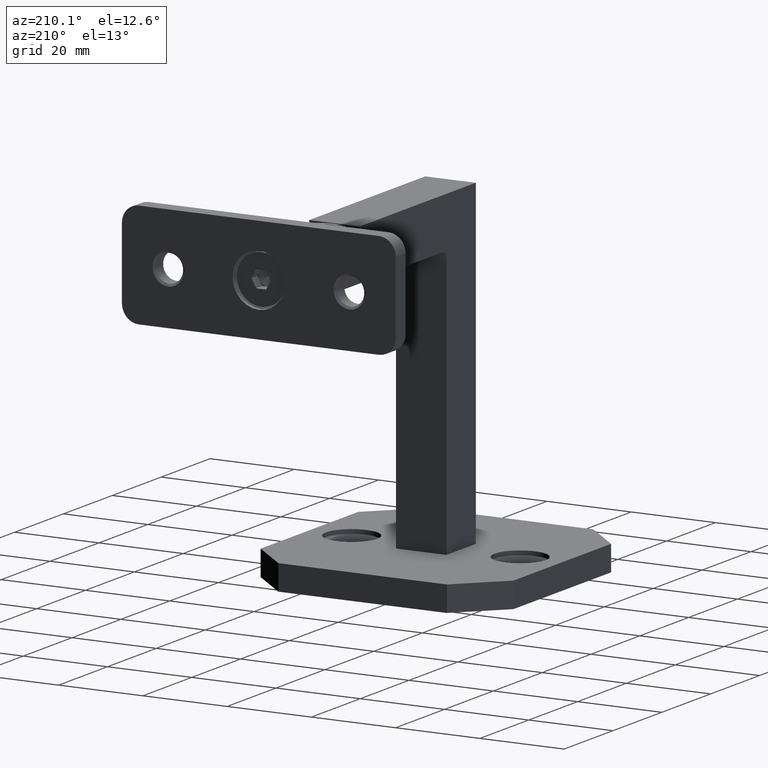
[diagram: clean part render]
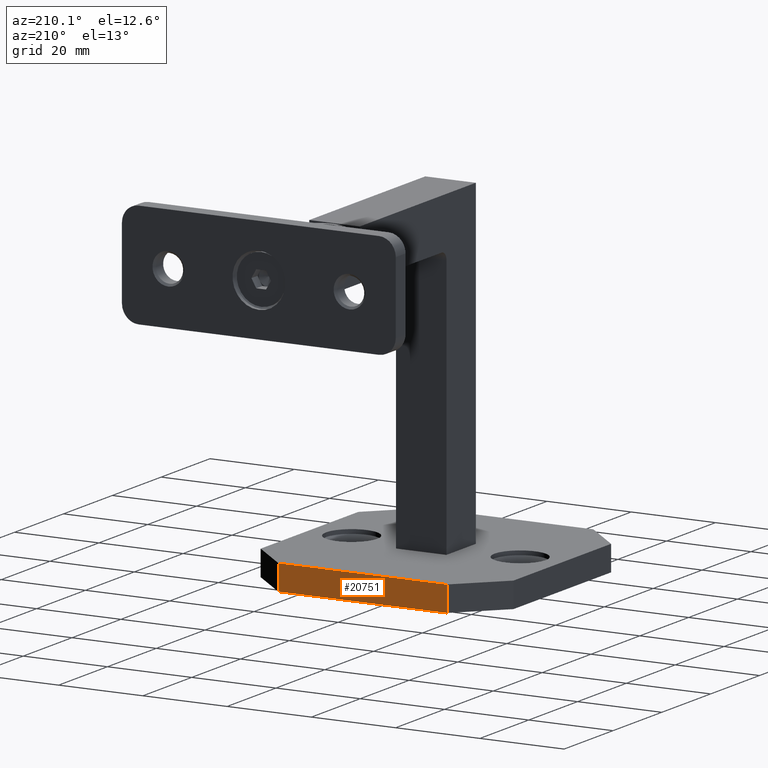
[diagram: same view with one face highlighted and labeled with its STEP entity id]
A machine part, auxiliary view. The second image highlights one B-rep face of the part: STEP entity #20751.
In plain terms, the highlighted planar face has unit normal (0, -1, 0).
Its self-contained STEP definition (entity closure, byte-faithful):
#495 = CARTESIAN_POINT ( 'NONE',  ( -19.99999999999998579, 30.00000000000000711, -3.000000000000000000 ) ) ;
#1288 = VECTOR ( 'NONE', #2352, 1000.000000000000000 ) ;
#1928 = VERTEX_POINT ( 'NONE', #10615 ) ;
#2352 = DIRECTION ( 'NONE',  ( -1.000000000000000000, -0.000000000000000000, -0.000000000000000000 ) ) ;
#3145 = DIRECTION ( 'NONE',  ( 0.000000000000000000, 0.000000000000000000, -1.000000000000000000 ) ) ;
#3239 = CARTESIAN_POINT ( 'NONE',  ( -30.00000000000001066, 30.00000000000000711, -3.000000000000000000 ) ) ;
#4252 = CARTESIAN_POINT ( 'NONE',  ( -30.00000000000001066, 30.00000000000000711, 3.000000000000000000 ) ) ;
#4499 = CARTESIAN_POINT ( 'NONE',  ( 19.99999999999998579, 30.00000000000000711, 3.000000000000000000 ) ) ;
#5243 = VERTEX_POINT ( 'NONE', #15216 ) ;
#6421 = FACE_OUTER_BOUND ( 'NONE', #18091, .T. ) ;
#6687 = LINE ( 'NONE', #4252, #1288 ) ;
#7987 = VERTEX_POINT ( 'NONE', #495 ) ;
#8129 = VECTOR ( 'NONE', #13192, 1000.000000000000000 ) ;
#8400 = LINE ( 'NONE', #4499, #16937 ) ;
#8693 = DIRECTION ( 'NONE',  ( 0.000000000000000000, -0.000000000000000000, -1.000000000000000000 ) ) ;
#9533 = EDGE_CURVE ( 'NONE', #1928, #7987, #13548, .T. ) ;
#10417 = EDGE_CURVE ( 'NONE', #7987, #5243, #23223, .T. ) ;
#10615 = CARTESIAN_POINT ( 'NONE',  ( 19.99999999999997513, 30.00000000000001066, -3.000000000000000000 ) ) ;
#11026 = ORIENTED_EDGE ( 'NONE', *, *, #10417, .T. ) ;
#12276 = PLANE ( 'NONE',  #16935 ) ;
#12445 = EDGE_CURVE ( 'NONE', #23014, #5243, #6687, .T. ) ;
#12447 = CARTESIAN_POINT ( 'NONE',  ( 19.99999999999997513, 30.00000000000001421, 3.000000000000000000 ) ) ;
#13089 = EDGE_CURVE ( 'NONE', #23014, #1928, #8400, .T. ) ;
#13192 = DIRECTION ( 'NONE',  ( 0.000000000000000000, 0.000000000000000000, 1.000000000000000000 ) ) ;
#13548 = LINE ( 'NONE', #3239, #20682 ) ;
#14208 = DIRECTION ( 'NONE',  ( -1.000000000000000000, -0.000000000000000000, -0.000000000000000000 ) ) ;
#15216 = CARTESIAN_POINT ( 'NONE',  ( -19.99999999999999289, 30.00000000000000711, 3.000000000000000000 ) ) ;
#16935 = AXIS2_PLACEMENT_3D ( 'NONE', #17752, #21492, #8693 ) ;
#16937 = VECTOR ( 'NONE', #3145, 1000.000000000000000 ) ;
#17752 = CARTESIAN_POINT ( 'NONE',  ( -30.00000000000001066, 30.00000000000000711, 3.000000000000000000 ) ) ;
#18091 = EDGE_LOOP ( 'NONE', ( #20707, #11026, #19761, #21047 ) ) ;
#19761 = ORIENTED_EDGE ( 'NONE', *, *, #12445, .F. ) ;
#20682 = VECTOR ( 'NONE', #14208, 1000.000000000000000 ) ;
#20707 = ORIENTED_EDGE ( 'NONE', *, *, #9533, .T. ) ;
#20751 = ADVANCED_FACE ( 'NONE', ( #6421 ), #12276, .F. ) ;
#21047 = ORIENTED_EDGE ( 'NONE', *, *, #13089, .T. ) ;
#21492 = DIRECTION ( 'NONE',  ( 0.000000000000000000, -1.000000000000000000, 0.000000000000000000 ) ) ;
#23014 = VERTEX_POINT ( 'NONE', #12447 ) ;
#23223 = LINE ( 'NONE', #23573, #8129 ) ;
#23573 = CARTESIAN_POINT ( 'NONE',  ( -19.99999999999998579, 30.00000000000000711, 3.000000000000000000 ) ) ;